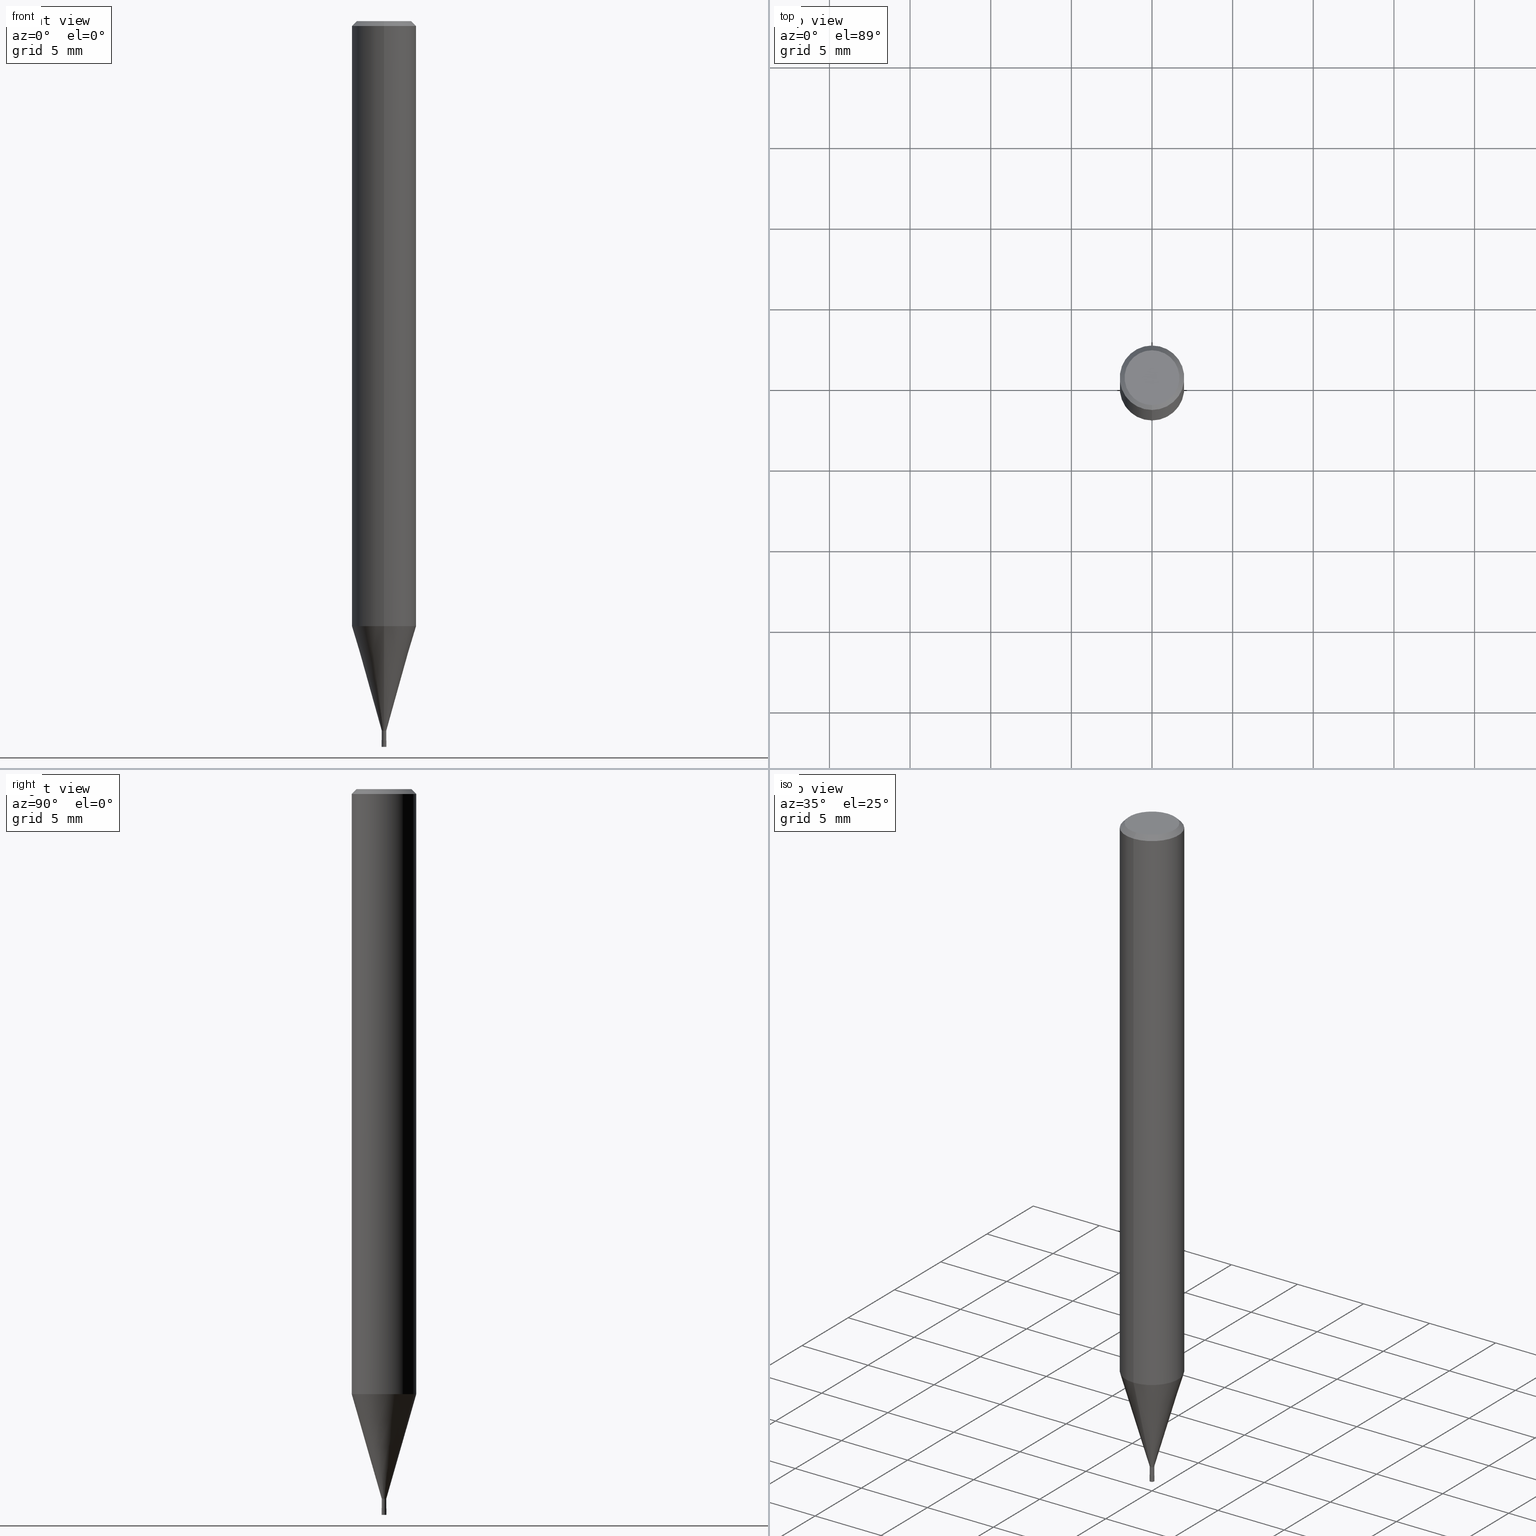
[diagram: canonical four-view strip — front | top / right | iso, engineering-drawing reading convention]
A machine part, canonical four-view strip (front | top / right | iso — engineering-drawing reading convention). The complete STEP part file that produces these views, byte-faithful:
ISO-10303-21;
HEADER;
FILE_DESCRIPTION(('no description'),'unknown implementation level');
FILE_NAME('HLS2003-010-Huellk.stp','  ',('CIMSOURCE GmbH'),('CADClick - KiM GmbH - www.kimweb.de'),'unknown preprocess','ACIS','unknown authorization');
FILE_SCHEMA(('automotive_design'));
ENDSEC;
DATA;
#1=MECHANICAL_DESIGN_GEOMETRIC_PRESENTATION_REPRESENTATION(' ',(#14,#15,#16,#17,#18,#19,#20,#21,#22,#23,#24,#25,#26,#27,#28,#29,#30,#31,#32,#33,#34,#35,#36,#37,#38,#39,#40,#41,#42,#43,#44,#45,#46,#47,#48,#49,#50,#51,#52,#53,#54,#55,#56,#57,#58,#59,#60,#61,#62,#63,#64,#65,#66,#67,#68,#69,#70,#71,#72),#10);
#2=PRODUCT_DEFINITION_CONTEXT('',#73,'design');
#3=APPLICATION_PROTOCOL_DEFINITION('INTERNATIONAL STANDARD','automotive_design',1994,#73);
#4=PRODUCT_CATEGORY_RELATIONSHIP('NONE','NONE',#74,#75);
#5=SHAPE_DEFINITION_REPRESENTATION(#76,#77);
#6=PRODUCT_DEFINITION_CONTEXT('',#78,'design');
#7=APPLICATION_PROTOCOL_DEFINITION('INTERNATIONAL STANDARD','automotive_design',1994,#78);
#8=PRODUCT_CATEGORY_RELATIONSHIP('NONE','NONE',#79,#80);
#9=SHAPE_DEFINITION_REPRESENTATION(#81,#82);
#10= (GEOMETRIC_REPRESENTATION_CONTEXT(3)GLOBAL_UNCERTAINTY_ASSIGNED_CONTEXT((#85))GLOBAL_UNIT_ASSIGNED_CONTEXT((#87,#88,#89))REPRESENTATION_CONTEXT('NONE','WORKSPACE'));
#14=STYLED_ITEM('',(#91),#92);
#15=STYLED_ITEM('',(#93),#94);
#16=STYLED_ITEM('',(#95),#96);
#17=STYLED_ITEM('',(#97),#98);
#18=STYLED_ITEM('',(#99),#100);
#19=STYLED_ITEM('',(#101),#102);
#20=STYLED_ITEM('',(#103),#104);
#21=STYLED_ITEM('',(#105),#106);
#22=STYLED_ITEM('',(#107),#108);
#23=STYLED_ITEM('',(#109),#110);
#24=STYLED_ITEM('',(#111),#112);
#25=STYLED_ITEM('',(#113),#114);
#26=STYLED_ITEM('',(#115),#116);
#27=STYLED_ITEM('',(#117),#118);
#28=STYLED_ITEM('',(#119),#120);
#29=STYLED_ITEM('',(#121),#122);
#30=STYLED_ITEM('',(#123),#124);
#31=STYLED_ITEM('',(#125),#126);
#32=STYLED_ITEM('',(#127),#128);
#33=STYLED_ITEM('',(#129),#130);
#34=STYLED_ITEM('',(#131),#132);
#35=STYLED_ITEM('',(#133),#134);
#36=STYLED_ITEM('',(#135),#136);
#37=STYLED_ITEM('',(#137),#138);
#38=STYLED_ITEM('',(#139),#140);
#39=STYLED_ITEM('',(#141),#142);
#40=STYLED_ITEM('',(#143),#144);
#41=STYLED_ITEM('',(#145),#146);
#42=STYLED_ITEM('',(#147),#148);
#43=STYLED_ITEM('',(#149),#150);
#44=STYLED_ITEM('',(#151),#152);
#45=STYLED_ITEM('',(#153),#154);
#46=STYLED_ITEM('',(#155),#156);
#47=STYLED_ITEM('',(#157),#158);
#48=STYLED_ITEM('',(#159),#160);
#49=STYLED_ITEM('',(#161),#162);
#50=STYLED_ITEM('',(#163),#164);
#51=STYLED_ITEM('',(#165),#166);
#52=STYLED_ITEM('',(#167),#168);
#53=STYLED_ITEM('',(#169),#170);
#54=STYLED_ITEM('',(#171),#172);
#55=STYLED_ITEM('',(#173),#174);
#56=STYLED_ITEM('',(#175),#176);
#57=STYLED_ITEM('',(#177),#178);
#58=STYLED_ITEM('',(#179),#180);
#59=STYLED_ITEM('',(#181),#182);
#60=STYLED_ITEM('',(#183),#184);
#61=STYLED_ITEM('',(#185),#186);
#62=STYLED_ITEM('',(#187),#188);
#63=STYLED_ITEM('',(#189),#190);
#64=STYLED_ITEM('',(#191),#192);
#65=STYLED_ITEM('',(#193),#194);
#66=STYLED_ITEM('',(#195),#196);
#67=STYLED_ITEM('',(#197),#198);
#68=STYLED_ITEM('',(#199),#200);
#69=STYLED_ITEM('',(#201),#202);
#70=STYLED_ITEM('',(#203),#204);
#71=STYLED_ITEM('',(#205),#206);
#72=STYLED_ITEM('',(#207),#208);
#73=APPLICATION_CONTEXT(' ');
#74=PRODUCT_CATEGORY('part','NONE');
#75=PRODUCT_RELATED_PRODUCT_CATEGORY('detail',' ',(#209));
#76=PRODUCT_DEFINITION_SHAPE('NONE','NONE',#210);
#77=ADVANCED_BREP_SHAPE_REPRESENTATION('1',(#92,#211),#10);
#78=APPLICATION_CONTEXT(' ');
#79=PRODUCT_CATEGORY('part','NONE');
#80=PRODUCT_RELATED_PRODUCT_CATEGORY('detail',' ',(#212));
#81=PRODUCT_DEFINITION_SHAPE('NONE','NONE',#213);
#82=ADVANCED_BREP_SHAPE_REPRESENTATION('2',(#196,#214),#10);
#85=UNCERTAINTY_MEASURE_WITH_UNIT(LENGTH_MEASURE(1.0E-006),#87,'','');
#87= (CONVERSION_BASED_UNIT('MILLIMETRE',#217)LENGTH_UNIT()NAMED_UNIT(#220));
#88= (NAMED_UNIT(#222)PLANE_ANGLE_UNIT()SI_UNIT($,.RADIAN.));
#89= (NAMED_UNIT(#222)SOLID_ANGLE_UNIT()SI_UNIT($,.STERADIAN.));
#91=PRESENTATION_STYLE_ASSIGNMENT((#228));
#92=MANIFOLD_SOLID_BREP('1',#229);
#93=PRESENTATION_STYLE_ASSIGNMENT((#230));
#94=VERTEX_POINT('',#231);
#95=PRESENTATION_STYLE_ASSIGNMENT((#232));
#96=EDGE_CURVE('',#140,#194,#233,.T.);
#97=PRESENTATION_STYLE_ASSIGNMENT((#234));
#98=EDGE_CURVE('',#160,#200,#235,.T.);
#99=PRESENTATION_STYLE_ASSIGNMENT((#236));
#100=EDGE_CURVE('',#168,#126,#237,.T.);
#101=PRESENTATION_STYLE_ASSIGNMENT((#238));
#102=VERTEX_POINT('',#239);
#103=PRESENTATION_STYLE_ASSIGNMENT((#240));
#104=EDGE_CURVE('',#126,#134,#241,.T.);
#105=PRESENTATION_STYLE_ASSIGNMENT((#242));
#106=ADVANCED_FACE('',(#243),#244,.T.);
#107=PRESENTATION_STYLE_ASSIGNMENT((#245));
#108=EDGE_CURVE('',#150,#176,#246,.T.);
#109=PRESENTATION_STYLE_ASSIGNMENT((#247));
#110=EDGE_CURVE('',#94,#136,#248,.T.);
#111=PRESENTATION_STYLE_ASSIGNMENT((#249));
#112=EDGE_CURVE('',#94,#160,#250,.T.);
#113=PRESENTATION_STYLE_ASSIGNMENT((#251));
#114=EDGE_CURVE('',#170,#136,#252,.T.);
#115=PRESENTATION_STYLE_ASSIGNMENT((#253));
#116=EDGE_CURVE('',#136,#170,#254,.T.);
#117=PRESENTATION_STYLE_ASSIGNMENT((#255));
#118=EDGE_CURVE('',#160,#94,#256,.T.);
#119=PRESENTATION_STYLE_ASSIGNMENT((#257));
#120=EDGE_CURVE('',#134,#126,#258,.T.);
#121=PRESENTATION_STYLE_ASSIGNMENT((#259));
#122=ADVANCED_FACE('',(#260),#261,.T.);
#123=PRESENTATION_STYLE_ASSIGNMENT((#262));
#124=EDGE_CURVE('',#194,#140,#263,.T.);
#125=PRESENTATION_STYLE_ASSIGNMENT((#264));
#126=VERTEX_POINT('',#265);
#127=PRESENTATION_STYLE_ASSIGNMENT((#266));
#128=VERTEX_POINT('',#267);
#129=PRESENTATION_STYLE_ASSIGNMENT((#268));
#130=VERTEX_POINT('',#269);
#131=PRESENTATION_STYLE_ASSIGNMENT((#270));
#132=ADVANCED_FACE('',(#271),#272,.T.);
#133=PRESENTATION_STYLE_ASSIGNMENT((#273));
#134=VERTEX_POINT('',#274);
#135=PRESENTATION_STYLE_ASSIGNMENT((#275));
#136=VERTEX_POINT('',#276);
#137=PRESENTATION_STYLE_ASSIGNMENT((#277));
#138=EDGE_CURVE('',#102,#134,#278,.T.);
#139=PRESENTATION_STYLE_ASSIGNMENT((#279));
#140=VERTEX_POINT('',#280);
#141=PRESENTATION_STYLE_ASSIGNMENT((#281));
#142=ADVANCED_FACE('',(#282),#283,.T.);
#143=PRESENTATION_STYLE_ASSIGNMENT((#284));
#144=EDGE_CURVE('',#150,#140,#285,.T.);
#145=PRESENTATION_STYLE_ASSIGNMENT((#286));
#146=ADVANCED_FACE('',(#287),#288,.T.);
#147=PRESENTATION_STYLE_ASSIGNMENT((#289));
#148=EDGE_CURVE('',#128,#168,#290,.T.);
#149=PRESENTATION_STYLE_ASSIGNMENT((#291));
#150=VERTEX_POINT('',#292);
#151=PRESENTATION_STYLE_ASSIGNMENT((#293));
#152=EDGE_CURVE('',#176,#150,#294,.T.);
#153=PRESENTATION_STYLE_ASSIGNMENT((#295));
#154=ADVANCED_FACE('',(#296),#297,.T.);
#155=PRESENTATION_STYLE_ASSIGNMENT((#298));
#156=EDGE_CURVE('',#134,#128,#299,.T.);
#157=PRESENTATION_STYLE_ASSIGNMENT((#300));
#158=ADVANCED_FACE('',(#301),#302,.T.);
#159=PRESENTATION_STYLE_ASSIGNMENT((#303));
#160=VERTEX_POINT('',#304);
#161=PRESENTATION_STYLE_ASSIGNMENT((#305));
#162=EDGE_CURVE('',#168,#128,#306,.T.);
#163=PRESENTATION_STYLE_ASSIGNMENT((#307));
#164=VERTEX_POINT('',#308);
#165=PRESENTATION_STYLE_ASSIGNMENT((#309));
#166=ADVANCED_FACE('',(#310),#311,.T.);
#167=PRESENTATION_STYLE_ASSIGNMENT((#312));
#168=VERTEX_POINT('',#313);
#169=PRESENTATION_STYLE_ASSIGNMENT((#314));
#170=VERTEX_POINT('',#315);
#171=PRESENTATION_STYLE_ASSIGNMENT((#316));
#172=EDGE_CURVE('',#170,#160,#317,.T.);
#173=PRESENTATION_STYLE_ASSIGNMENT((#318));
#174=ADVANCED_FACE('',(#319),#320,.T.);
#175=PRESENTATION_STYLE_ASSIGNMENT((#321));
#176=VERTEX_POINT('',#322);
#177=PRESENTATION_STYLE_ASSIGNMENT((#323));
#178=ADVANCED_FACE('',(#324),#325,.T.);
#179=PRESENTATION_STYLE_ASSIGNMENT((#326));
#180=ADVANCED_FACE('',(#327,#328),#329,.T.);
#181=PRESENTATION_STYLE_ASSIGNMENT((#330));
#182=EDGE_CURVE('',#194,#176,#331,.T.);
#183=PRESENTATION_STYLE_ASSIGNMENT((#332));
#184=ADVANCED_FACE('',(#333),#334,.T.);
#185=PRESENTATION_STYLE_ASSIGNMENT((#335));
#186=EDGE_CURVE('',#126,#130,#336,.T.);
#187=PRESENTATION_STYLE_ASSIGNMENT((#337));
#188=EDGE_CURVE('',#102,#130,#338,.T.);
#189=PRESENTATION_STYLE_ASSIGNMENT((#339));
#190=ADVANCED_FACE('',(#340),#341,.T.);
#191=PRESENTATION_STYLE_ASSIGNMENT((#342));
#192=EDGE_CURVE('',#130,#102,#343,.T.);
#193=PRESENTATION_STYLE_ASSIGNMENT((#344));
#194=VERTEX_POINT('',#345);
#195=PRESENTATION_STYLE_ASSIGNMENT((#346));
#196=MANIFOLD_SOLID_BREP('2',#347);
#197=PRESENTATION_STYLE_ASSIGNMENT((#348));
#198=ADVANCED_FACE('',(#349),#350,.T.);
#199=PRESENTATION_STYLE_ASSIGNMENT((#351));
#200=VERTEX_POINT('',#352);
#201=PRESENTATION_STYLE_ASSIGNMENT((#353));
#202=EDGE_CURVE('',#164,#94,#354,.T.);
#203=PRESENTATION_STYLE_ASSIGNMENT((#355));
#204=ADVANCED_FACE('',(#356),#357,.T.);
#205=PRESENTATION_STYLE_ASSIGNMENT((#358));
#206=EDGE_CURVE('',#200,#164,#359,.T.);
#207=PRESENTATION_STYLE_ASSIGNMENT((#360));
#208=EDGE_CURVE('',#164,#200,#361,.T.);
#209=PRODUCT('1','1','PART-1-DESC',(#362));
#210=PRODUCT_DEFINITION('NONE','NONE',#363,#2);
#211=AXIS2_PLACEMENT_3D('',#364,#365,#366);
#212=PRODUCT('2','2','PART-2-DESC',(#367));
#213=PRODUCT_DEFINITION('NONE','NONE',#368,#6);
#214=AXIS2_PLACEMENT_3D('',#369,#370,#371);
#217=LENGTH_MEASURE_WITH_UNIT(LENGTH_MEASURE(1.0),#372);
#220=DIMENSIONAL_EXPONENTS(1.0,0.0,0.0,0.0,0.0,0.0,0.0);
#222=DIMENSIONAL_EXPONENTS(0.0,0.0,0.0,0.0,0.0,0.0,0.0);
#228=SURFACE_STYLE_USAGE(.BOTH.,#373);
#229=CLOSED_SHELL('',(#158,#154,#166,#178,#180,#204,#132,#198,#184,#190,#146));
#230=POINT_STYLE(' ',#374,POSITIVE_LENGTH_MEASURE(1.0E-006),#375);
#231=CARTESIAN_POINT('',(2.44921270764475E-016,-2.0,-0.299999999999997));
#232=CURVE_STYLE('',#376,POSITIVE_LENGTH_MEASURE(1.0E-006),#377);
#233=CIRCLE('',#378,0.15);
#234=CURVE_STYLE('',#379,POSITIVE_LENGTH_MEASURE(1.0E-006),#380);
#235=LINE('',#381,#382);
#236=CURVE_STYLE('',#383,POSITIVE_LENGTH_MEASURE(1.0E-006),#384);
#237=LINE('',#385,#386);
#238=POINT_STYLE(' ',#387,POSITIVE_LENGTH_MEASURE(1.0E-006),#388);
#239=CARTESIAN_POINT('',(0.0,1.99995,-37.513));
#240=CURVE_STYLE('',#389,POSITIVE_LENGTH_MEASURE(1.0E-006),#390);
#241=CIRCLE('',#391,0.13995);
#242=SURFACE_STYLE_USAGE(.BOTH.,#392);
#243=FACE_OUTER_BOUND('',#393,.T.);
#244=CONICAL_SURFACE('',#394,0.14995,0.000249999994791639);
#245=CURVE_STYLE('',#395,POSITIVE_LENGTH_MEASURE(1.0E-006),#396);
#246=CIRCLE('',#397,0.1499);
#247=CURVE_STYLE('',#398,POSITIVE_LENGTH_MEASURE(1.0E-006),#399);
#248=LINE('',#400,#401);
#249=CURVE_STYLE('',#402,POSITIVE_LENGTH_MEASURE(1.0E-006),#403);
#250=CIRCLE('',#404,2.0);
#251=CURVE_STYLE('',#405,POSITIVE_LENGTH_MEASURE(1.0E-006),#406);
#252=CIRCLE('',#407,1.7);
#253=CURVE_STYLE('',#408,POSITIVE_LENGTH_MEASURE(1.0E-006),#409);
#254=CIRCLE('',#410,1.7);
#255=CURVE_STYLE('',#411,POSITIVE_LENGTH_MEASURE(1.0E-006),#412);
#256=CIRCLE('',#413,2.0);
#257=CURVE_STYLE('',#414,POSITIVE_LENGTH_MEASURE(1.0E-006),#415);
#258=CIRCLE('',#416,0.13995);
#259=SURFACE_STYLE_USAGE(.BOTH.,#417);
#260=FACE_OUTER_BOUND('',#418,.T.);
#261=PLANE('',#419);
#262=CURVE_STYLE('',#420,POSITIVE_LENGTH_MEASURE(1.0E-006),#421);
#263=CIRCLE('',#422,0.15);
#264=POINT_STYLE(' ',#423,POSITIVE_LENGTH_MEASURE(1.0E-006),#424);
#265=CARTESIAN_POINT('',(1.71383659217442E-017,-0.13995,-44.0));
#266=POINT_STYLE(' ',#425,POSITIVE_LENGTH_MEASURE(1.0E-006),#426);
#267=CARTESIAN_POINT('',(0.0,0.13995,-44.6));
#268=POINT_STYLE(' ',#427,POSITIVE_LENGTH_MEASURE(1.0E-006),#428);
#269=CARTESIAN_POINT('',(2.44915147732706E-016,-1.99995,-37.513));
#270=SURFACE_STYLE_USAGE(.BOTH.,#429);
#271=FACE_OUTER_BOUND('',#430,.T.);
#272=CONICAL_SURFACE('',#431,1.85,0.785398163397453);
#273=POINT_STYLE(' ',#432,POSITIVE_LENGTH_MEASURE(1.0E-006),#433);
#274=CARTESIAN_POINT('',(0.0,0.13995,-44.0));
#275=POINT_STYLE(' ',#434,POSITIVE_LENGTH_MEASURE(1.0E-006),#435);
#276=CARTESIAN_POINT('',(2.08183080149804E-016,-1.7,0.0));
#277=CURVE_STYLE('',#436,POSITIVE_LENGTH_MEASURE(1.0E-006),#437);
#278=LINE('',#438,#439);
#279=POINT_STYLE(' ',#440,POSITIVE_LENGTH_MEASURE(1.0E-006),#441);
#280=CARTESIAN_POINT('',(0.0,0.15,-45.0));
#281=SURFACE_STYLE_USAGE(.BOTH.,#442);
#282=FACE_OUTER_BOUND('',#443,.T.);
#283=PLANE('',#444);
#284=CURVE_STYLE('',#445,POSITIVE_LENGTH_MEASURE(1.0E-006),#446);
#285=LINE('',#447,#448);
#286=SURFACE_STYLE_USAGE(.BOTH.,#449);
#287=FACE_OUTER_BOUND('',#450,.T.);
#288=PLANE('',#451);
#289=CURVE_STYLE('',#452,POSITIVE_LENGTH_MEASURE(1.0E-006),#453);
#290=CIRCLE('',#454,0.13995);
#291=POINT_STYLE(' ',#455,POSITIVE_LENGTH_MEASURE(1.0E-006),#456);
#292=CARTESIAN_POINT('',(0.0,0.1499,-44.6));
#293=CURVE_STYLE('',#457,POSITIVE_LENGTH_MEASURE(1.0E-006),#458);
#294=CIRCLE('',#459,0.1499);
#295=SURFACE_STYLE_USAGE(.BOTH.,#460);
#296=FACE_OUTER_BOUND('',#461,.T.);
#297=CONICAL_SURFACE('',#462,1.06995,0.27923596926092);
#298=CURVE_STYLE('',#463,POSITIVE_LENGTH_MEASURE(1.0E-006),#464);
#299=LINE('',#465,#466);
#300=SURFACE_STYLE_USAGE(.BOTH.,#467);
#301=FACE_OUTER_BOUND('',#468,.T.);
#302=CYLINDRICAL_SURFACE('',#469,0.13995);
#303=POINT_STYLE(' ',#470,POSITIVE_LENGTH_MEASURE(1.0E-006),#471);
#304=CARTESIAN_POINT('',(0.0,2.0,-0.299999999999997));
#305=CURVE_STYLE('',#472,POSITIVE_LENGTH_MEASURE(1.0E-006),#473);
#306=CIRCLE('',#474,0.13995);
#307=POINT_STYLE(' ',#475,POSITIVE_LENGTH_MEASURE(1.0E-006),#476);
#308=CARTESIAN_POINT('',(2.44921270764475E-016,-2.0,-37.513));
#309=SURFACE_STYLE_USAGE(.BOTH.,#477);
#310=FACE_OUTER_BOUND('',#478,.T.);
#311=CYLINDRICAL_SURFACE('',#479,2.0);
#312=POINT_STYLE(' ',#480,POSITIVE_LENGTH_MEASURE(1.0E-006),#481);
#313=CARTESIAN_POINT('',(1.71383659217442E-017,-0.13995,-44.6));
#314=POINT_STYLE(' ',#482,POSITIVE_LENGTH_MEASURE(1.0E-006),#483);
#315=CARTESIAN_POINT('',(0.0,1.7,0.0));
#316=CURVE_STYLE('',#484,POSITIVE_LENGTH_MEASURE(1.0E-006),#485);
#317=LINE('',#486,#487);
#318=SURFACE_STYLE_USAGE(.BOTH.,#488);
#319=FACE_OUTER_BOUND('',#489,.T.);
#320=CONICAL_SURFACE('',#490,0.14995,0.000249999994791639);
#321=POINT_STYLE(' ',#491,POSITIVE_LENGTH_MEASURE(1.0E-006),#492);
#322=CARTESIAN_POINT('',(1.83568492437974E-017,-0.1499,-44.6));
#323=SURFACE_STYLE_USAGE(.BOTH.,#493);
#324=FACE_OUTER_BOUND('',#494,.T.);
#325=CONICAL_SURFACE('',#495,1.85,0.785398163397453);
#326=SURFACE_STYLE_USAGE(.BOTH.,#496);
#327=FACE_OUTER_BOUND('',#497,.T.);
#328=FACE_BOUND('',#498,.T.);
#329=PLANE('',#499);
#330=CURVE_STYLE('',#500,POSITIVE_LENGTH_MEASURE(1.0E-006),#501);
#331=LINE('',#502,#503);
#332=SURFACE_STYLE_USAGE(.BOTH.,#504);
#333=FACE_OUTER_BOUND('',#505,.T.);
#334=CONICAL_SURFACE('',#506,1.06995,0.27923596926092);
#335=CURVE_STYLE('',#507,POSITIVE_LENGTH_MEASURE(1.0E-006),#508);
#336=LINE('',#509,#510);
#337=CURVE_STYLE('',#511,POSITIVE_LENGTH_MEASURE(1.0E-006),#512);
#338=CIRCLE('',#513,1.99995);
#339=SURFACE_STYLE_USAGE(.BOTH.,#514);
#340=FACE_OUTER_BOUND('',#515,.T.);
#341=CYLINDRICAL_SURFACE('',#516,0.13995);
#342=CURVE_STYLE('',#517,POSITIVE_LENGTH_MEASURE(1.0E-006),#518);
#343=CIRCLE('',#519,1.99995);
#344=POINT_STYLE(' ',#520,POSITIVE_LENGTH_MEASURE(1.0E-006),#521);
#345=CARTESIAN_POINT('',(1.83690953073357E-017,-0.15,-45.0));
#346=SURFACE_STYLE_USAGE(.BOTH.,#522);
#347=CLOSED_SHELL('',(#174,#122,#106,#142));
#348=SURFACE_STYLE_USAGE(.BOTH.,#523);
#349=FACE_OUTER_BOUND('',#524,.T.);
#350=CYLINDRICAL_SURFACE('',#525,2.0);
#351=POINT_STYLE(' ',#526,POSITIVE_LENGTH_MEASURE(1.0E-006),#527);
#352=CARTESIAN_POINT('',(0.0,2.0,-37.513));
#353=CURVE_STYLE('',#528,POSITIVE_LENGTH_MEASURE(1.0E-006),#529);
#354=LINE('',#530,#531);
#355=SURFACE_STYLE_USAGE(.BOTH.,#532);
#356=FACE_OUTER_BOUND('',#533,.T.);
#357=PLANE('',#534);
#358=CURVE_STYLE('',#535,POSITIVE_LENGTH_MEASURE(1.0E-006),#536);
#359=CIRCLE('',#537,2.0);
#360=CURVE_STYLE('',#538,POSITIVE_LENGTH_MEASURE(1.0E-006),#539);
#361=CIRCLE('',#540,2.0);
#362=PRODUCT_CONTEXT('',#73,'mechanical');
#363=PRODUCT_DEFINITION_FORMATION_WITH_SPECIFIED_SOURCE(' ','NONE',#209,.NOT_KNOWN.);
#364=CARTESIAN_POINT('',(0.0,0.0,0.0));
#365=DIRECTION('',(0.0,0.0,1.0));
#366=DIRECTION('',(1.0,0.0,0.0));
#367=PRODUCT_CONTEXT('',#78,'mechanical');
#368=PRODUCT_DEFINITION_FORMATION_WITH_SPECIFIED_SOURCE(' ','NONE',#212,.NOT_KNOWN.);
#369=CARTESIAN_POINT('',(0.0,0.0,0.0));
#370=DIRECTION('',(0.0,0.0,1.0));
#371=DIRECTION('',(1.0,0.0,0.0));
#372= (NAMED_UNIT(#220)LENGTH_UNIT()SI_UNIT(.MILLI.,.METRE.));
#373=SURFACE_SIDE_STYLE('',(#542));
#374=PRE_DEFINED_MARKER('');
#375=COLOUR_RGB('',0.498039215803146,0.498039215803146,0.498039215803146);
#376=DRAUGHTING_PRE_DEFINED_CURVE_FONT('continuous');
#377=COLOUR_RGB('',0.800000011920929,0.800000011920929,0.800000011920929);
#378=AXIS2_PLACEMENT_3D('',#543,#544,#545);
#379=DRAUGHTING_PRE_DEFINED_CURVE_FONT('continuous');
#380=COLOUR_RGB('',0.498039215803146,0.498039215803146,0.498039215803146);
#381=CARTESIAN_POINT('',(-2.44921270764475E-016,2.0,-18.9065));
#382=VECTOR('',#546,1.0);
#383=DRAUGHTING_PRE_DEFINED_CURVE_FONT('continuous');
#384=COLOUR_RGB('',0.498039215803146,0.498039215803146,0.498039215803146);
#385=CARTESIAN_POINT('',(1.71383659217442E-017,-0.13995,-44.3));
#386=VECTOR('',#547,1.0);
#387=PRE_DEFINED_MARKER('');
#388=COLOUR_RGB('',0.498039215803146,0.498039215803146,0.498039215803146);
#389=DRAUGHTING_PRE_DEFINED_CURVE_FONT('continuous');
#390=COLOUR_RGB('',0.498039215803146,0.498039215803146,0.498039215803146);
#391=AXIS2_PLACEMENT_3D('',#548,#549,#550);
#392=SURFACE_SIDE_STYLE('',(#551));
#393=EDGE_LOOP('',(#552,#553,#554,#555));
#394=AXIS2_PLACEMENT_3D('',#556,#557,#558);
#395=DRAUGHTING_PRE_DEFINED_CURVE_FONT('continuous');
#396=COLOUR_RGB('',0.800000011920929,0.800000011920929,0.800000011920929);
#397=AXIS2_PLACEMENT_3D('',#559,#560,#561);
#398=DRAUGHTING_PRE_DEFINED_CURVE_FONT('continuous');
#399=COLOUR_RGB('',0.498039215803146,0.498039215803146,0.498039215803146);
#400=CARTESIAN_POINT('',(2.2655217545714E-016,-1.85,-0.149999999999999));
#401=VECTOR('',#562,1.0);
#402=DRAUGHTING_PRE_DEFINED_CURVE_FONT('continuous');
#403=COLOUR_RGB('',0.498039215803146,0.498039215803146,0.498039215803146);
#404=AXIS2_PLACEMENT_3D('',#563,#564,#565);
#405=DRAUGHTING_PRE_DEFINED_CURVE_FONT('continuous');
#406=COLOUR_RGB('',0.498039215803146,0.498039215803146,0.498039215803146);
#407=AXIS2_PLACEMENT_3D('',#566,#567,#568);
#408=DRAUGHTING_PRE_DEFINED_CURVE_FONT('continuous');
#409=COLOUR_RGB('',0.498039215803146,0.498039215803146,0.498039215803146);
#410=AXIS2_PLACEMENT_3D('',#569,#570,#571);
#411=DRAUGHTING_PRE_DEFINED_CURVE_FONT('continuous');
#412=COLOUR_RGB('',0.498039215803146,0.498039215803146,0.498039215803146);
#413=AXIS2_PLACEMENT_3D('',#572,#573,#574);
#414=DRAUGHTING_PRE_DEFINED_CURVE_FONT('continuous');
#415=COLOUR_RGB('',0.498039215803146,0.498039215803146,0.498039215803146);
#416=AXIS2_PLACEMENT_3D('',#575,#576,#577);
#417=SURFACE_SIDE_STYLE('',(#578));
#418=EDGE_LOOP('',(#579,#580));
#419=AXIS2_PLACEMENT_3D('',#581,#582,#583);
#420=DRAUGHTING_PRE_DEFINED_CURVE_FONT('continuous');
#421=COLOUR_RGB('',0.800000011920929,0.800000011920929,0.800000011920929);
#422=AXIS2_PLACEMENT_3D('',#584,#585,#586);
#423=PRE_DEFINED_MARKER('');
#424=COLOUR_RGB('',0.498039215803146,0.498039215803146,0.498039215803146);
#425=PRE_DEFINED_MARKER('');
#426=COLOUR_RGB('',0.498039215803146,0.498039215803146,0.498039215803146);
#427=PRE_DEFINED_MARKER('');
#428=COLOUR_RGB('',0.498039215803146,0.498039215803146,0.498039215803146);
#429=SURFACE_SIDE_STYLE('',(#587));
#430=EDGE_LOOP('',(#588,#589,#590,#591));
#431=AXIS2_PLACEMENT_3D('',#592,#593,#594);
#432=PRE_DEFINED_MARKER('');
#433=COLOUR_RGB('',0.498039215803146,0.498039215803146,0.498039215803146);
#434=PRE_DEFINED_MARKER('');
#435=COLOUR_RGB('',0.498039215803146,0.498039215803146,0.498039215803146);
#436=DRAUGHTING_PRE_DEFINED_CURVE_FONT('continuous');
#437=COLOUR_RGB('',0.498039215803146,0.498039215803146,0.498039215803146);
#438=CARTESIAN_POINT('',(-1.31026756827225E-016,1.06995,-40.7565));
#439=VECTOR('',#595,1.0);
#440=PRE_DEFINED_MARKER('');
#441=COLOUR_RGB('',0.800000011920929,0.800000011920929,0.800000011920929);
#442=SURFACE_SIDE_STYLE('',(#596));
#443=EDGE_LOOP('',(#597,#598));
#444=AXIS2_PLACEMENT_3D('',#599,#600,#601);
#445=DRAUGHTING_PRE_DEFINED_CURVE_FONT('continuous');
#446=COLOUR_RGB('',0.800000011920929,0.800000011920929,0.800000011920929);
#447=CARTESIAN_POINT('',(-1.83629722755665E-017,0.14995,-44.8));
#448=VECTOR('',#602,1.0);
#449=SURFACE_SIDE_STYLE('',(#603));
#450=EDGE_LOOP('',(#604,#605));
#451=AXIS2_PLACEMENT_3D('',#606,#607,#608);
#452=DRAUGHTING_PRE_DEFINED_CURVE_FONT('continuous');
#453=COLOUR_RGB('',0.498039215803146,0.498039215803146,0.498039215803146);
#454=AXIS2_PLACEMENT_3D('',#609,#610,#611);
#455=PRE_DEFINED_MARKER('');
#456=COLOUR_RGB('',0.800000011920929,0.800000011920929,0.800000011920929);
#457=DRAUGHTING_PRE_DEFINED_CURVE_FONT('continuous');
#458=COLOUR_RGB('',0.800000011920929,0.800000011920929,0.800000011920929);
#459=AXIS2_PLACEMENT_3D('',#612,#613,#614);
#460=SURFACE_SIDE_STYLE('',(#615));
#461=EDGE_LOOP('',(#616,#617,#618,#619));
#462=AXIS2_PLACEMENT_3D('',#620,#621,#622);
#463=DRAUGHTING_PRE_DEFINED_CURVE_FONT('continuous');
#464=COLOUR_RGB('',0.498039215803146,0.498039215803146,0.498039215803146);
#465=CARTESIAN_POINT('',(-1.71383659217442E-017,0.13995,-44.3));
#466=VECTOR('',#623,1.0);
#467=SURFACE_SIDE_STYLE('',(#624));
#468=EDGE_LOOP('',(#625,#626,#627,#628));
#469=AXIS2_PLACEMENT_3D('',#629,#630,#631);
#470=PRE_DEFINED_MARKER('');
#471=COLOUR_RGB('',0.498039215803146,0.498039215803146,0.498039215803146);
#472=DRAUGHTING_PRE_DEFINED_CURVE_FONT('continuous');
#473=COLOUR_RGB('',0.498039215803146,0.498039215803146,0.498039215803146);
#474=AXIS2_PLACEMENT_3D('',#632,#633,#634);
#475=PRE_DEFINED_MARKER('');
#476=COLOUR_RGB('',0.498039215803146,0.498039215803146,0.498039215803146);
#477=SURFACE_SIDE_STYLE('',(#635));
#478=EDGE_LOOP('',(#636,#637,#638,#639));
#479=AXIS2_PLACEMENT_3D('',#640,#641,#642);
#480=PRE_DEFINED_MARKER('');
#481=COLOUR_RGB('',0.498039215803146,0.498039215803146,0.498039215803146);
#482=PRE_DEFINED_MARKER('');
#483=COLOUR_RGB('',0.498039215803146,0.498039215803146,0.498039215803146);
#484=DRAUGHTING_PRE_DEFINED_CURVE_FONT('continuous');
#485=COLOUR_RGB('',0.498039215803146,0.498039215803146,0.498039215803146);
#486=CARTESIAN_POINT('',(-2.2655217545714E-016,1.85,-0.149999999999999));
#487=VECTOR('',#643,1.0);
#488=SURFACE_SIDE_STYLE('',(#644));
#489=EDGE_LOOP('',(#645,#646,#647,#648));
#490=AXIS2_PLACEMENT_3D('',#649,#650,#651);
#491=PRE_DEFINED_MARKER('');
#492=COLOUR_RGB('',0.800000011920929,0.800000011920929,0.800000011920929);
#493=SURFACE_SIDE_STYLE('',(#652));
#494=EDGE_LOOP('',(#653,#654,#655,#656));
#495=AXIS2_PLACEMENT_3D('',#657,#658,#659);
#496=SURFACE_SIDE_STYLE('',(#660));
#497=EDGE_LOOP('',(#661,#662));
#498=EDGE_LOOP('',(#663,#664));
#499=AXIS2_PLACEMENT_3D('',#665,#666,#667);
#500=DRAUGHTING_PRE_DEFINED_CURVE_FONT('continuous');
#501=COLOUR_RGB('',0.800000011920929,0.800000011920929,0.800000011920929);
#502=CARTESIAN_POINT('',(1.83629722755665E-017,-0.14995,-44.8));
#503=VECTOR('',#668,1.0);
#504=SURFACE_SIDE_STYLE('',(#669));
#505=EDGE_LOOP('',(#670,#671,#672,#673));
#506=AXIS2_PLACEMENT_3D('',#674,#675,#676);
#507=DRAUGHTING_PRE_DEFINED_CURVE_FONT('continuous');
#508=COLOUR_RGB('',0.498039215803146,0.498039215803146,0.498039215803146);
#509=CARTESIAN_POINT('',(1.31026756827225E-016,-1.06995,-40.7565));
#510=VECTOR('',#677,1.0);
#511=DRAUGHTING_PRE_DEFINED_CURVE_FONT('continuous');
#512=COLOUR_RGB('',0.498039215803146,0.498039215803146,0.498039215803146);
#513=AXIS2_PLACEMENT_3D('',#678,#679,#680);
#514=SURFACE_SIDE_STYLE('',(#681));
#515=EDGE_LOOP('',(#682,#683,#684,#685));
#516=AXIS2_PLACEMENT_3D('',#686,#687,#688);
#517=DRAUGHTING_PRE_DEFINED_CURVE_FONT('continuous');
#518=COLOUR_RGB('',0.498039215803146,0.498039215803146,0.498039215803146);
#519=AXIS2_PLACEMENT_3D('',#689,#690,#691);
#520=PRE_DEFINED_MARKER('');
#521=COLOUR_RGB('',0.800000011920929,0.800000011920929,0.800000011920929);
#522=SURFACE_SIDE_STYLE('',(#692));
#523=SURFACE_SIDE_STYLE('',(#693));
#524=EDGE_LOOP('',(#694,#695,#696,#697));
#525=AXIS2_PLACEMENT_3D('',#698,#699,#700);
#526=PRE_DEFINED_MARKER('');
#527=COLOUR_RGB('',0.498039215803146,0.498039215803146,0.498039215803146);
#528=DRAUGHTING_PRE_DEFINED_CURVE_FONT('continuous');
#529=COLOUR_RGB('',0.498039215803146,0.498039215803146,0.498039215803146);
#530=CARTESIAN_POINT('',(2.44921270764475E-016,-2.0,-18.9065));
#531=VECTOR('',#701,1.0);
#532=SURFACE_SIDE_STYLE('',(#702));
#533=EDGE_LOOP('',(#703,#704));
#534=AXIS2_PLACEMENT_3D('',#705,#706,#707);
#535=DRAUGHTING_PRE_DEFINED_CURVE_FONT('continuous');
#536=COLOUR_RGB('',0.498039215803146,0.498039215803146,0.498039215803146);
#537=AXIS2_PLACEMENT_3D('',#708,#709,#710);
#538=DRAUGHTING_PRE_DEFINED_CURVE_FONT('continuous');
#539=COLOUR_RGB('',0.498039215803146,0.498039215803146,0.498039215803146);
#540=AXIS2_PLACEMENT_3D('',#711,#712,#713);
#542=SURFACE_STYLE_FILL_AREA(#714);
#543=CARTESIAN_POINT('',(0.0,0.0,-45.0));
#544=DIRECTION('',(0.0,0.0,-1.0));
#545=DIRECTION('',(0.0,1.0,0.0));
#546=DIRECTION('',(0.0,0.0,-1.0));
#547=DIRECTION('',(-0.0,-0.0,1.0));
#548=CARTESIAN_POINT('',(0.0,0.0,-44.0));
#549=DIRECTION('',(0.0,0.0,-1.0));
#550=DIRECTION('',(0.0,1.0,0.0));
#551=SURFACE_STYLE_FILL_AREA(#715);
#552=ORIENTED_EDGE('',*,*,#144,.T.);
#553=ORIENTED_EDGE('',*,*,#124,.F.);
#554=ORIENTED_EDGE('',*,*,#182,.T.);
#555=ORIENTED_EDGE('',*,*,#152,.T.);
#556=CARTESIAN_POINT('',(0.0,0.0,-44.8));
#557=DIRECTION('',(0.0,-0.0,-1.0));
#558=DIRECTION('',(0.0,1.0,0.0));
#559=CARTESIAN_POINT('',(0.0,0.0,-44.6));
#560=DIRECTION('',(0.0,0.0,-1.0));
#561=DIRECTION('',(0.0,1.0,0.0));
#562=DIRECTION('',(-8.6592745707194E-017,0.707106781186551,0.707106781186544));
#563=CARTESIAN_POINT('',(0.0,0.0,-0.299999999999997));
#564=DIRECTION('',(0.0,0.0,-1.0));
#565=DIRECTION('',(0.0,1.0,0.0));
#566=CARTESIAN_POINT('',(0.0,0.0,0.0));
#567=DIRECTION('',(0.0,0.0,-1.0));
#568=DIRECTION('',(0.0,1.0,0.0));
#569=CARTESIAN_POINT('',(0.0,0.0,0.0));
#570=DIRECTION('',(0.0,0.0,-1.0));
#571=DIRECTION('',(0.0,1.0,0.0));
#572=CARTESIAN_POINT('',(0.0,0.0,-0.299999999999997));
#573=DIRECTION('',(0.0,0.0,-1.0));
#574=DIRECTION('',(0.0,1.0,0.0));
#575=CARTESIAN_POINT('',(0.0,0.0,-44.0));
#576=DIRECTION('',(0.0,0.0,-1.0));
#577=DIRECTION('',(0.0,1.0,0.0));
#578=SURFACE_STYLE_FILL_AREA(#716);
#579=ORIENTED_EDGE('',*,*,#108,.F.);
#580=ORIENTED_EDGE('',*,*,#152,.F.);
#581=CARTESIAN_POINT('',(0.0,0.07495,-44.6));
#582=DIRECTION('',(-0.0,0.0,1.0));
#583=DIRECTION('',(0.0,-1.0,0.0));
#584=CARTESIAN_POINT('',(0.0,0.0,-45.0));
#585=DIRECTION('',(0.0,0.0,-1.0));
#586=DIRECTION('',(0.0,1.0,0.0));
#587=SURFACE_STYLE_FILL_AREA(#717);
#588=ORIENTED_EDGE('',*,*,#172,.T.);
#589=ORIENTED_EDGE('',*,*,#112,.F.);
#590=ORIENTED_EDGE('',*,*,#110,.T.);
#591=ORIENTED_EDGE('',*,*,#116,.T.);
#592=CARTESIAN_POINT('',(0.0,0.0,-0.149999999999999));
#593=DIRECTION('',(0.0,-0.0,-1.0));
#594=DIRECTION('',(0.0,1.0,0.0));
#595=DIRECTION('',(3.37527585527933E-017,-0.275621292078393,-0.961266301995986));
#596=SURFACE_STYLE_FILL_AREA(#718);
#597=ORIENTED_EDGE('',*,*,#96,.T.);
#598=ORIENTED_EDGE('',*,*,#124,.T.);
#599=CARTESIAN_POINT('',(0.0,0.0725,-45.0));
#600=DIRECTION('',(0.0,0.0,-1.0));
#601=DIRECTION('',(0.0,1.0,0.0));
#602=DIRECTION('',(-3.06151578888324E-020,0.000249999992187473,-0.999999968750002));
#603=SURFACE_STYLE_FILL_AREA(#719);
#604=ORIENTED_EDGE('',*,*,#148,.T.);
#605=ORIENTED_EDGE('',*,*,#162,.T.);
#606=CARTESIAN_POINT('',(0.0,0.069975,-44.6));
#607=DIRECTION('',(0.0,0.0,-1.0));
#608=DIRECTION('',(0.0,1.0,0.0));
#609=CARTESIAN_POINT('',(0.0,0.0,-44.6));
#610=DIRECTION('',(0.0,0.0,-1.0));
#611=DIRECTION('',(0.0,1.0,0.0));
#612=CARTESIAN_POINT('',(0.0,0.0,-44.6));
#613=DIRECTION('',(0.0,0.0,-1.0));
#614=DIRECTION('',(0.0,1.0,0.0));
#615=SURFACE_STYLE_FILL_AREA(#720);
#616=ORIENTED_EDGE('',*,*,#138,.F.);
#617=ORIENTED_EDGE('',*,*,#188,.T.);
#618=ORIENTED_EDGE('',*,*,#186,.F.);
#619=ORIENTED_EDGE('',*,*,#120,.F.);
#620=CARTESIAN_POINT('',(0.0,0.0,-40.7565));
#621=DIRECTION('',(-0.0,-0.0,1.0));
#622=DIRECTION('',(0.0,1.0,0.0));
#623=DIRECTION('',(0.0,0.0,-1.0));
#624=SURFACE_STYLE_FILL_AREA(#721);
#625=ORIENTED_EDGE('',*,*,#156,.F.);
#626=ORIENTED_EDGE('',*,*,#120,.T.);
#627=ORIENTED_EDGE('',*,*,#100,.F.);
#628=ORIENTED_EDGE('',*,*,#148,.F.);
#629=CARTESIAN_POINT('',(0.0,0.0,-44.3));
#630=DIRECTION('',(-0.0,-0.0,1.0));
#631=DIRECTION('',(0.0,1.0,0.0));
#632=CARTESIAN_POINT('',(0.0,0.0,-44.6));
#633=DIRECTION('',(0.0,0.0,-1.0));
#634=DIRECTION('',(0.0,1.0,0.0));
#635=SURFACE_STYLE_FILL_AREA(#722);
#636=ORIENTED_EDGE('',*,*,#98,.F.);
#637=ORIENTED_EDGE('',*,*,#118,.T.);
#638=ORIENTED_EDGE('',*,*,#202,.F.);
#639=ORIENTED_EDGE('',*,*,#206,.F.);
#640=CARTESIAN_POINT('',(0.0,0.0,-18.9065));
#641=DIRECTION('',(-0.0,-0.0,1.0));
#642=DIRECTION('',(0.0,1.0,0.0));
#643=DIRECTION('',(-8.6592745707194E-017,0.707106781186551,-0.707106781186544));
#644=SURFACE_STYLE_FILL_AREA(#723);
#645=ORIENTED_EDGE('',*,*,#144,.F.);
#646=ORIENTED_EDGE('',*,*,#108,.T.);
#647=ORIENTED_EDGE('',*,*,#182,.F.);
#648=ORIENTED_EDGE('',*,*,#96,.F.);
#649=CARTESIAN_POINT('',(0.0,0.0,-44.8));
#650=DIRECTION('',(0.0,-0.0,-1.0));
#651=DIRECTION('',(0.0,1.0,0.0));
#652=SURFACE_STYLE_FILL_AREA(#724);
#653=ORIENTED_EDGE('',*,*,#172,.F.);
#654=ORIENTED_EDGE('',*,*,#114,.T.);
#655=ORIENTED_EDGE('',*,*,#110,.F.);
#656=ORIENTED_EDGE('',*,*,#118,.F.);
#657=CARTESIAN_POINT('',(0.0,0.0,-0.149999999999999));
#658=DIRECTION('',(0.0,-0.0,-1.0));
#659=DIRECTION('',(0.0,1.0,0.0));
#660=SURFACE_STYLE_FILL_AREA(#725);
#661=ORIENTED_EDGE('',*,*,#206,.T.);
#662=ORIENTED_EDGE('',*,*,#208,.T.);
#663=ORIENTED_EDGE('',*,*,#188,.F.);
#664=ORIENTED_EDGE('',*,*,#192,.F.);
#665=CARTESIAN_POINT('',(0.0,1.0,-37.513));
#666=DIRECTION('',(0.0,0.0,-1.0));
#667=DIRECTION('',(0.0,1.0,0.0));
#668=DIRECTION('',(-3.06151578888324E-020,0.000249999992187473,0.999999968750002));
#669=SURFACE_STYLE_FILL_AREA(#726);
#670=ORIENTED_EDGE('',*,*,#138,.T.);
#671=ORIENTED_EDGE('',*,*,#104,.F.);
#672=ORIENTED_EDGE('',*,*,#186,.T.);
#673=ORIENTED_EDGE('',*,*,#192,.T.);
#674=CARTESIAN_POINT('',(0.0,0.0,-40.7565));
#675=DIRECTION('',(-0.0,-0.0,1.0));
#676=DIRECTION('',(0.0,1.0,0.0));
#677=DIRECTION('',(3.37527585527934E-017,-0.275621292078393,0.961266301995986));
#678=CARTESIAN_POINT('',(0.0,0.0,-37.513));
#679=DIRECTION('',(0.0,0.0,-1.0));
#680=DIRECTION('',(0.0,1.0,0.0));
#681=SURFACE_STYLE_FILL_AREA(#727);
#682=ORIENTED_EDGE('',*,*,#156,.T.);
#683=ORIENTED_EDGE('',*,*,#162,.F.);
#684=ORIENTED_EDGE('',*,*,#100,.T.);
#685=ORIENTED_EDGE('',*,*,#104,.T.);
#686=CARTESIAN_POINT('',(0.0,0.0,-44.3));
#687=DIRECTION('',(-0.0,-0.0,1.0));
#688=DIRECTION('',(0.0,1.0,0.0));
#689=CARTESIAN_POINT('',(0.0,0.0,-37.513));
#690=DIRECTION('',(0.0,0.0,-1.0));
#691=DIRECTION('',(0.0,1.0,0.0));
#692=SURFACE_STYLE_FILL_AREA(#728);
#693=SURFACE_STYLE_FILL_AREA(#729);
#694=ORIENTED_EDGE('',*,*,#98,.T.);
#695=ORIENTED_EDGE('',*,*,#208,.F.);
#696=ORIENTED_EDGE('',*,*,#202,.T.);
#697=ORIENTED_EDGE('',*,*,#112,.T.);
#698=CARTESIAN_POINT('',(0.0,0.0,-18.9065));
#699=DIRECTION('',(-0.0,-0.0,1.0));
#700=DIRECTION('',(0.0,1.0,0.0));
#701=DIRECTION('',(-0.0,-0.0,1.0));
#702=SURFACE_STYLE_FILL_AREA(#730);
#703=ORIENTED_EDGE('',*,*,#114,.F.);
#704=ORIENTED_EDGE('',*,*,#116,.F.);
#705=CARTESIAN_POINT('',(0.0,0.85,0.0));
#706=DIRECTION('',(-0.0,0.0,1.0));
#707=DIRECTION('',(0.0,-1.0,0.0));
#708=CARTESIAN_POINT('',(0.0,0.0,-37.513));
#709=DIRECTION('',(0.0,0.0,-1.0));
#710=DIRECTION('',(0.0,1.0,0.0));
#711=CARTESIAN_POINT('',(0.0,0.0,-37.513));
#712=DIRECTION('',(0.0,0.0,-1.0));
#713=DIRECTION('',(0.0,1.0,0.0));
#714=FILL_AREA_STYLE('',(#731));
#715=FILL_AREA_STYLE('',(#732));
#716=FILL_AREA_STYLE('',(#733));
#717=FILL_AREA_STYLE('',(#734));
#718=FILL_AREA_STYLE('',(#735));
#719=FILL_AREA_STYLE('',(#736));
#720=FILL_AREA_STYLE('',(#737));
#721=FILL_AREA_STYLE('',(#738));
#722=FILL_AREA_STYLE('',(#739));
#723=FILL_AREA_STYLE('',(#740));
#724=FILL_AREA_STYLE('',(#741));
#725=FILL_AREA_STYLE('',(#742));
#726=FILL_AREA_STYLE('',(#743));
#727=FILL_AREA_STYLE('',(#744));
#728=FILL_AREA_STYLE('',(#745));
#729=FILL_AREA_STYLE('',(#746));
#730=FILL_AREA_STYLE('',(#747));
#731=FILL_AREA_STYLE_COLOUR('',#748);
#732=FILL_AREA_STYLE_COLOUR('',#749);
#733=FILL_AREA_STYLE_COLOUR('',#750);
#734=FILL_AREA_STYLE_COLOUR('',#751);
#735=FILL_AREA_STYLE_COLOUR('',#752);
#736=FILL_AREA_STYLE_COLOUR('',#753);
#737=FILL_AREA_STYLE_COLOUR('',#754);
#738=FILL_AREA_STYLE_COLOUR('',#755);
#739=FILL_AREA_STYLE_COLOUR('',#756);
#740=FILL_AREA_STYLE_COLOUR('',#757);
#741=FILL_AREA_STYLE_COLOUR('',#758);
#742=FILL_AREA_STYLE_COLOUR('',#759);
#743=FILL_AREA_STYLE_COLOUR('',#760);
#744=FILL_AREA_STYLE_COLOUR('',#761);
#745=FILL_AREA_STYLE_COLOUR('',#762);
#746=FILL_AREA_STYLE_COLOUR('',#763);
#747=FILL_AREA_STYLE_COLOUR('',#764);
#748=COLOUR_RGB('',0.498039215803146,0.498039215803146,0.498039215803146);
#749=COLOUR_RGB('',0.800000011920929,0.800000011920929,0.800000011920929);
#750=COLOUR_RGB('',0.800000011920929,0.800000011920929,0.800000011920929);
#751=COLOUR_RGB('',0.498039215803146,0.498039215803146,0.498039215803146);
#752=COLOUR_RGB('',0.800000011920929,0.800000011920929,0.800000011920929);
#753=COLOUR_RGB('',0.498039215803146,0.498039215803146,0.498039215803146);
#754=COLOUR_RGB('',0.498039215803146,0.498039215803146,0.498039215803146);
#755=COLOUR_RGB('',0.498039215803146,0.498039215803146,0.498039215803146);
#756=COLOUR_RGB('',0.498039215803146,0.498039215803146,0.498039215803146);
#757=COLOUR_RGB('',0.800000011920929,0.800000011920929,0.800000011920929);
#758=COLOUR_RGB('',0.498039215803146,0.498039215803146,0.498039215803146);
#759=COLOUR_RGB('',0.498039215803146,0.498039215803146,0.498039215803146);
#760=COLOUR_RGB('',0.498039215803146,0.498039215803146,0.498039215803146);
#761=COLOUR_RGB('',0.498039215803146,0.498039215803146,0.498039215803146);
#762=COLOUR_RGB('',0.800000011920929,0.800000011920929,0.800000011920929);
#763=COLOUR_RGB('',0.498039215803146,0.498039215803146,0.498039215803146);
#764=COLOUR_RGB('',0.498039215803146,0.498039215803146,0.498039215803146);
#765=AXIS2_PLACEMENT_3D('PCS',#766,#767,#768);
#766=CARTESIAN_POINT('',(0.0,0.0,0.0));
#767=DIRECTION('',(0.0,0.0,1.0));
#768=DIRECTION('',(1.0,0.0,0.0));
#769=AXIS2_PLACEMENT_3D('CIP',#770,#771,#772);
#770=CARTESIAN_POINT('',(0.0,0.0,-45.0));
#771=DIRECTION('',(0.0,0.0,1.0));
#772=DIRECTION('',(1.0,0.0,0.0));
#773=AXIS2_PLACEMENT_3D('CRP',#774,#775,#776);
#774=CARTESIAN_POINT('',(-0.15,0.0,-45.0));
#775=DIRECTION('',(0.0,0.0,1.0));
#776=DIRECTION('',(1.0,0.0,0.0));
#777=AXIS2_PLACEMENT_3D('MCS',#778,#779,#780);
#778=CARTESIAN_POINT('',(0.0,0.0,-37.513));
#779=DIRECTION('',(0.0,0.0,1.0));
#780=DIRECTION('',(1.0,0.0,0.0));
#781=CONSTRUCTIVE_GEOMETRY_REPRESENTATION_RELATIONSHIP('coordinate systems',$,#77,#782);
#782=CONSTRUCTIVE_GEOMETRY_REPRESENTATION('coordinate systems',(#765,#769,#773,#777),#10);
ENDSEC;
END-ISO-10303-21;
